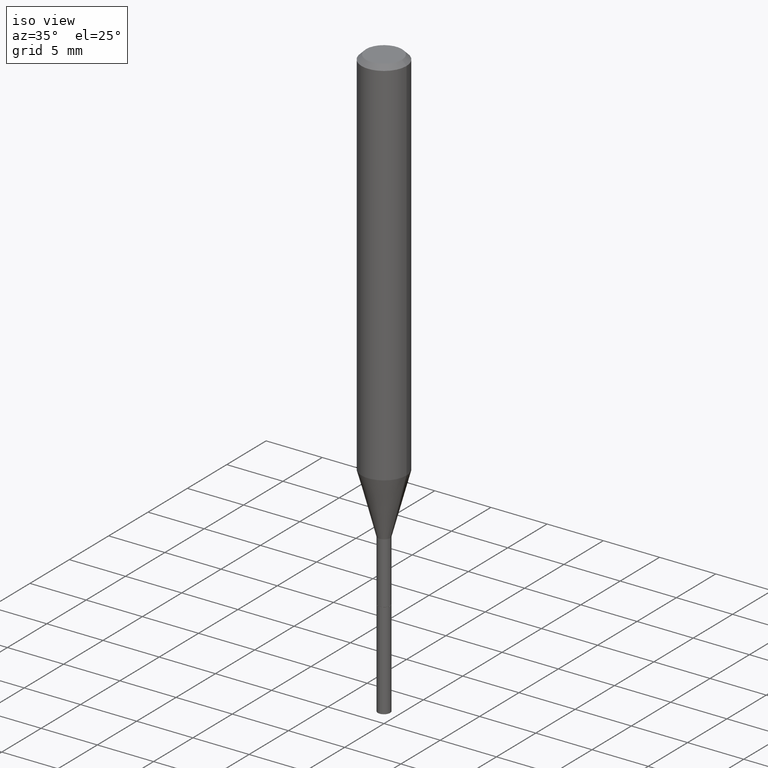
[diagram: clean part render]
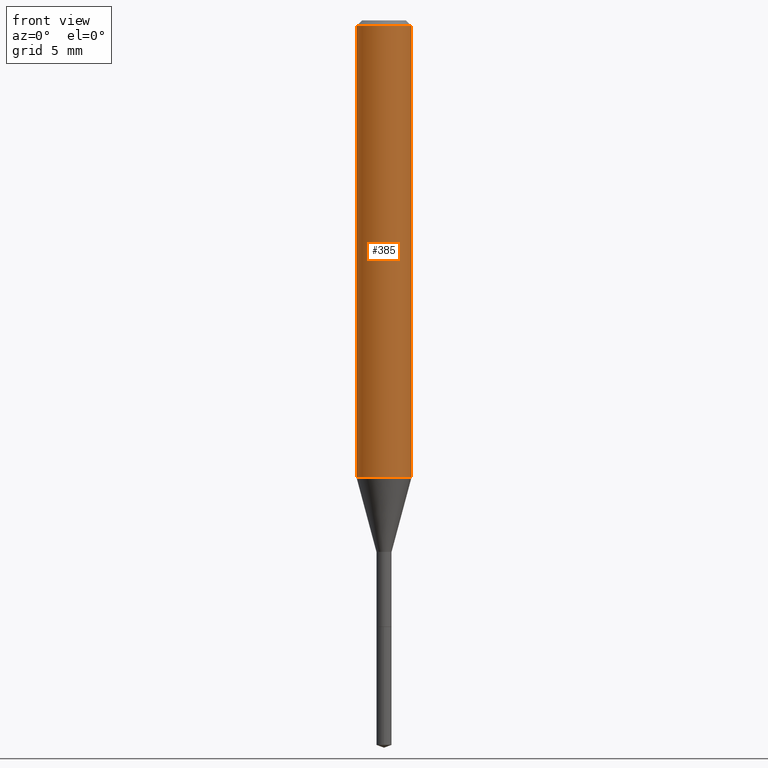
[diagram: tour spotlight — one face highlighted and labeled with its STEP entity id]
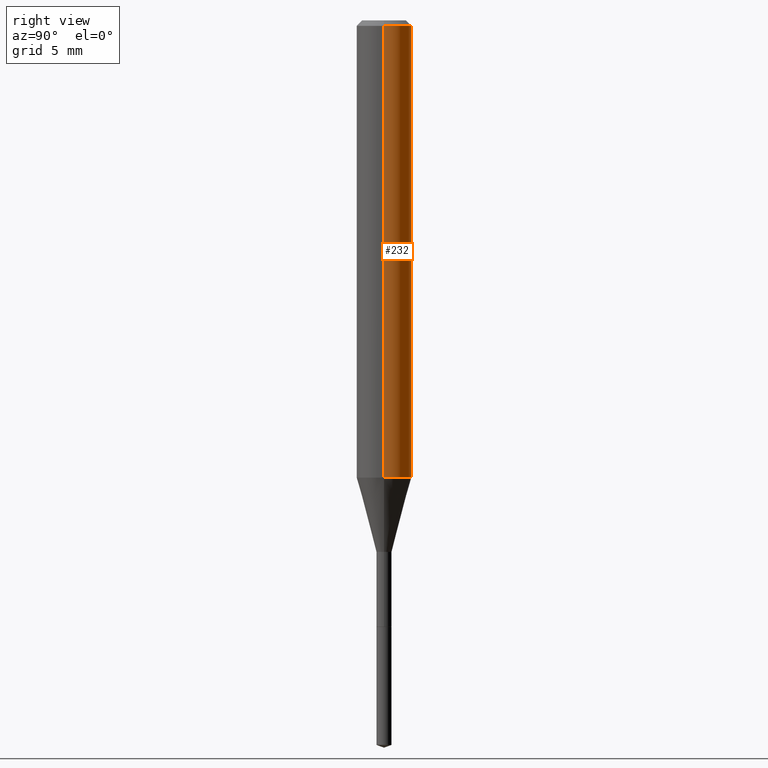
[diagram: tour spotlight — one face highlighted and labeled with its STEP entity id]
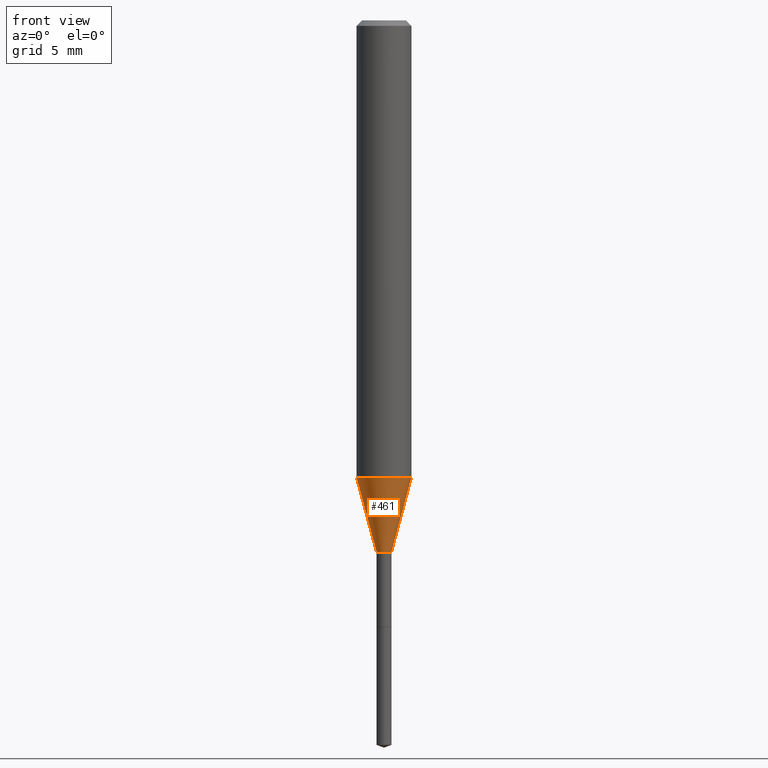
[diagram: tour spotlight — one face highlighted and labeled with its STEP entity id]
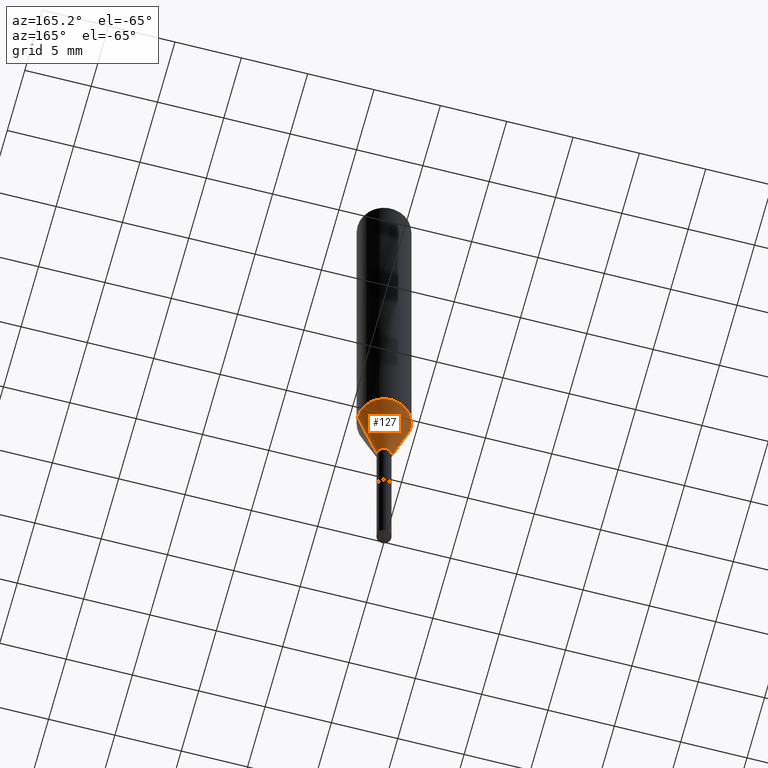
[diagram: tour spotlight — one face highlighted and labeled with its STEP entity id]
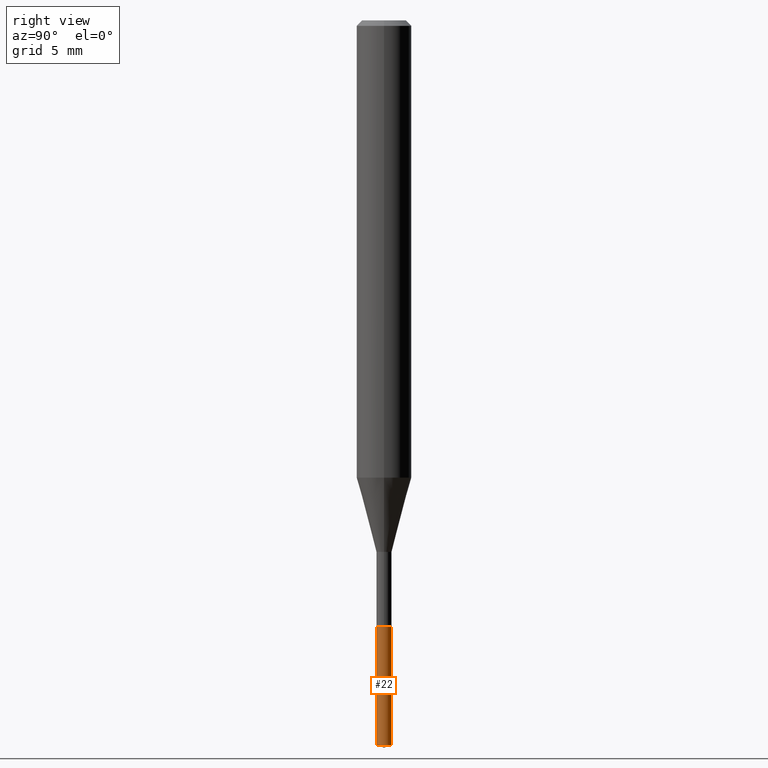
[diagram: tour spotlight — one face highlighted and labeled with its STEP entity id]
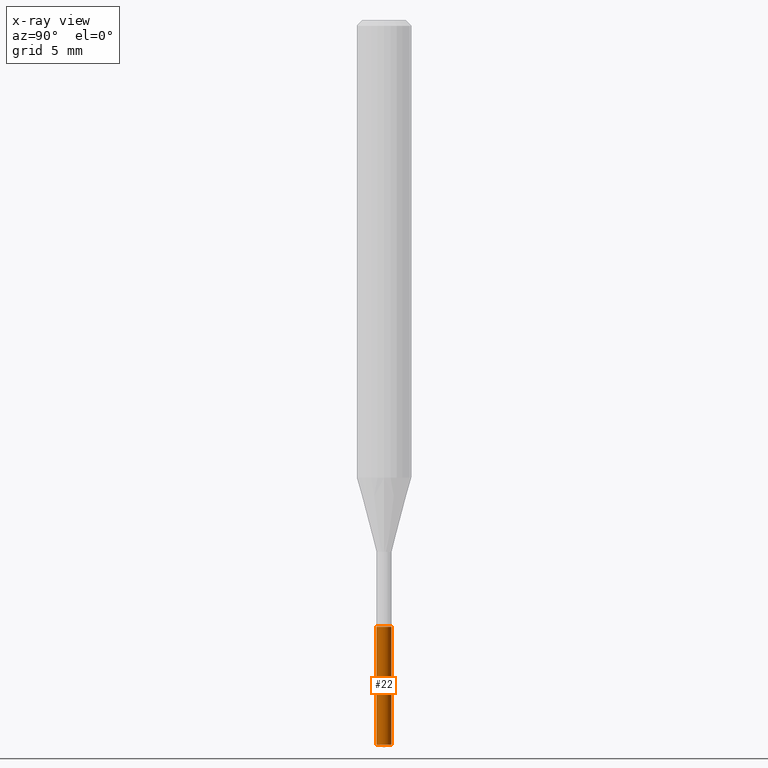
[diagram: x-ray of the same camera — body ghosted, this tour face saturated]
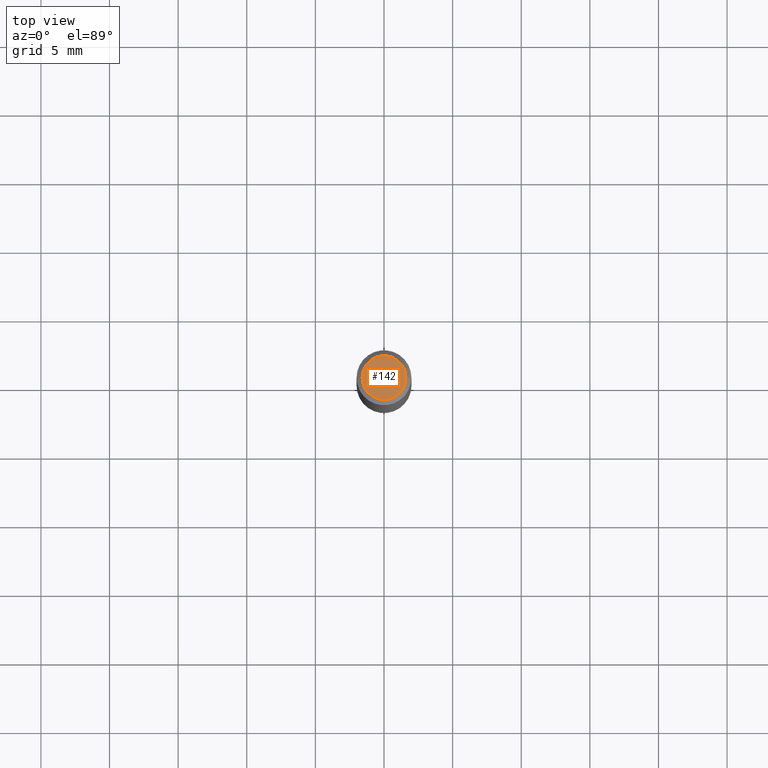
[diagram: tour spotlight — one face highlighted and labeled with its STEP entity id]
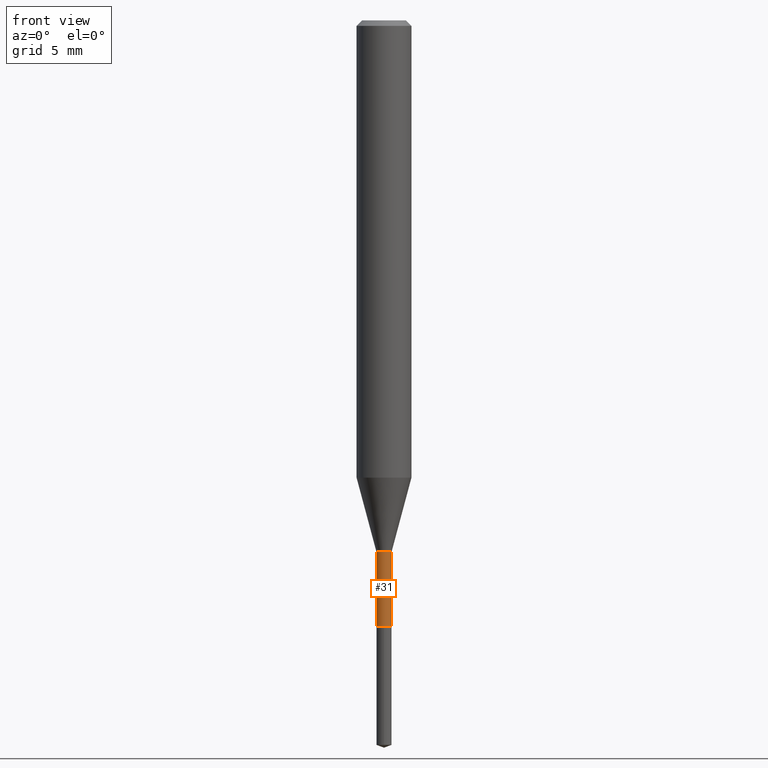
[diagram: tour spotlight — one face highlighted and labeled with its STEP entity id]
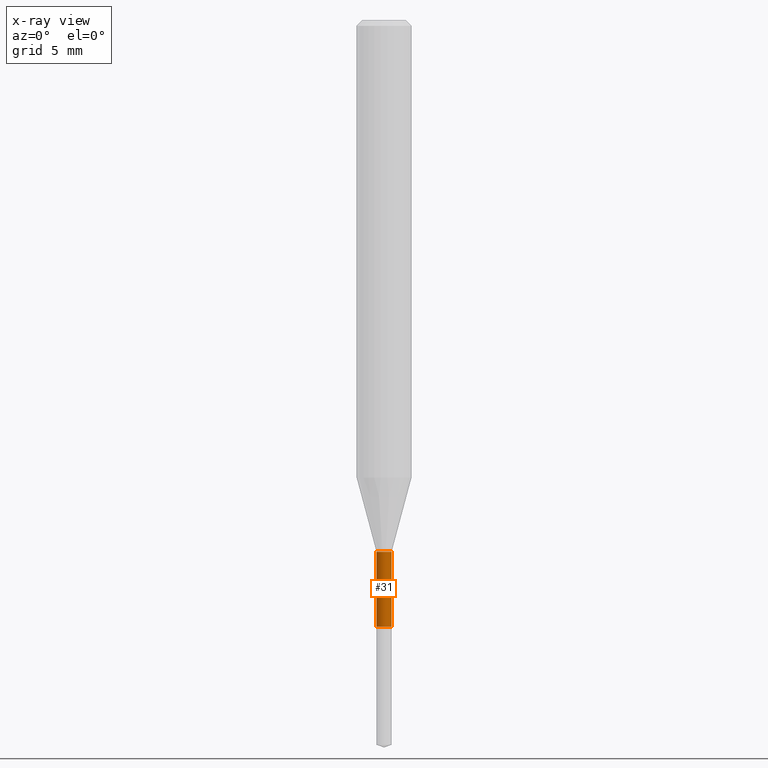
[diagram: x-ray of the same camera — body ghosted, this tour face saturated]
A machine part: a face-by-face anatomy tour. The part has 17 B-rep faces; the first image is the clean iso view, then the 7 largest visible faces are spotlighted one at a time (largest first), each with its STEP entity span.

Face 1 — front view, entity #385. In plain terms, the highlighted cylindrical surface (edge-blend (fillet) strip) has radius 2.0003 mm, axis along (-0, 0, 1).
Definition (entity closure, byte-faithful):
#4 = CARTESIAN_POINT ( 'NONE',  ( 0.000000000000000000, 0.000000000000000000, 0.000000000000000000 ) ) ;
#6 = CYLINDRICAL_SURFACE ( 'NONE', #384, 0.07875000000000008382 ) ;
#9 = ORIENTED_EDGE ( 'NONE', *, *, #152, .T. ) ;
#39 = CARTESIAN_POINT ( 'NONE',  ( -0.07875000000000016709, -4.020921610985940816E-15, -1.311899898887816551 ) ) ;
#47 = EDGE_CURVE ( 'NONE', #485, #254, #151, .T. ) ;
#51 = AXIS2_PLACEMENT_3D ( 'NONE', #303, #480, #144 ) ;
#54 = CARTESIAN_POINT ( 'NONE',  ( -0.07875000000000000056, -1.758180018830819886E-15, -0.01575000000000008338 ) ) ;
#78 = DIRECTION ( 'NONE',  ( -2.445468806185136597E-29, 3.491481338843145583E-15, 1.000000000000000000 ) ) ;
#93 = ORIENTED_EDGE ( 'NONE', *, *, #240, .F. ) ;
#98 = CIRCLE ( 'NONE', #203, 0.07875000000000000056 ) ;
#104 = ORIENTED_EDGE ( 'NONE', *, *, #47, .T. ) ;
#134 = CARTESIAN_POINT ( 'NONE',  ( 3.851613369741610420E-31, -5.499083108677983377E-17, -0.01575000000000008338 ) ) ;
#144 = DIRECTION ( 'NONE',  ( 1.000000000000000000, -6.982962677686271444E-15, 0.000000000000000000 ) ) ;
#151 = CIRCLE ( 'NONE', #51, 0.07875000000000016709 ) ;
#152 = EDGE_CURVE ( 'NONE', #254, #207, #317, .T. ) ;
#160 = CARTESIAN_POINT ( 'NONE',  ( 0.07875000000000008382, -5.499083108677941345E-16, 3.839989210939303220E-30 ) ) ;
#182 = EDGE_LOOP ( 'NONE', ( #93, #104, #9, #338 ) ) ;
#203 = AXIS2_PLACEMENT_3D ( 'NONE', #134, #293, #205 ) ;
#205 = DIRECTION ( 'NONE',  ( 1.000000000000000000, -6.982962677686265922E-15, 0.000000000000000000 ) ) ;
#207 = VERTEX_POINT ( 'NONE', #235 ) ;
#235 = CARTESIAN_POINT ( 'NONE',  ( 0.07875000000000000056, -6.048991419545733705E-16, -0.01575000000000008338 ) ) ;
#236 = EDGE_CURVE ( 'NONE', #290, #207, #98, .T. ) ;
#240 = EDGE_CURVE ( 'NONE', #485, #290, #433, .T. ) ;
#245 = VECTOR ( 'NONE', #355, 39.37007874015748143 ) ;
#254 = VERTEX_POINT ( 'NONE', #467 ) ;
#290 = VERTEX_POINT ( 'NONE', #54 ) ;
#293 = DIRECTION ( 'NONE',  ( -2.445468806185136597E-29, 3.491481338843145583E-15, 1.000000000000000000 ) ) ;
#303 = CARTESIAN_POINT ( 'NONE',  ( 3.208210279567590187E-29, -4.580474015397021196E-15, -1.311899898887816551 ) ) ;
#317 = LINE ( 'NONE', #160, #489 ) ;
#338 = ORIENTED_EDGE ( 'NONE', *, *, #236, .F. ) ;
#355 = DIRECTION ( 'NONE',  ( -2.445468806185136877E-29, 3.491481338843145188E-15, 1.000000000000000000 ) ) ;
#359 = CARTESIAN_POINT ( 'NONE',  ( -0.07875000000000008382, 5.595524044110794920E-16, -3.873661383575742696E-30 ) ) ;
#379 = FACE_OUTER_BOUND ( 'NONE', #182, .T. ) ;
#383 = DIRECTION ( 'NONE',  ( -2.445468806185136877E-29, 3.491481338843145188E-15, 1.000000000000000000 ) ) ;
#384 = AXIS2_PLACEMENT_3D ( 'NONE', #4, #78, #454 ) ;
#385 = ADVANCED_FACE ( 'NONE', ( #379 ), #6, .T. ) ;
#433 = LINE ( 'NONE', #359, #245 ) ;
#454 = DIRECTION ( 'NONE',  ( 1.000000000000000000, -6.982962677686267499E-15, 4.876176775795935232E-29 ) ) ;
#467 = CARTESIAN_POINT ( 'NONE',  ( 0.07875000000000016709, -5.130382326264816119E-15, -1.311899898887816551 ) ) ;
#480 = DIRECTION ( 'NONE',  ( -2.445468806185136597E-29, 3.491481338843145583E-15, 1.000000000000000000 ) ) ;
#485 = VERTEX_POINT ( 'NONE', #39 ) ;
#489 = VECTOR ( 'NONE', #383, 39.37007874015748143 ) ;

Face 2 — right view, entity #232. In plain terms, the highlighted cylindrical surface (edge-blend (fillet) strip) has radius 2.0003 mm, axis along (-0, 0, 1).
Definition (entity closure, byte-faithful):
#11 = CARTESIAN_POINT ( 'NONE',  ( 3.208210279567590187E-29, -4.580474015397021196E-15, -1.311899898887816551 ) ) ;
#39 = CARTESIAN_POINT ( 'NONE',  ( -0.07875000000000016709, -4.020921610985940816E-15, -1.311899898887816551 ) ) ;
#50 = DIRECTION ( 'NONE',  ( 1.000000000000000000, -6.982962677686267499E-15, 4.876176775795935232E-29 ) ) ;
#54 = CARTESIAN_POINT ( 'NONE',  ( -0.07875000000000000056, -1.758180018830819886E-15, -0.01575000000000008338 ) ) ;
#59 = CIRCLE ( 'NONE', #463, 0.07875000000000016709 ) ;
#64 = ORIENTED_EDGE ( 'NONE', *, *, #470, .F. ) ;
#70 = DIRECTION ( 'NONE',  ( 1.000000000000000000, -6.982962677686265922E-15, 0.000000000000000000 ) ) ;
#71 = DIRECTION ( 'NONE',  ( -2.445468806185136597E-29, 3.491481338843145583E-15, 1.000000000000000000 ) ) ;
#75 = DIRECTION ( 'NONE',  ( 1.000000000000000000, -6.982962677686271444E-15, 0.000000000000000000 ) ) ;
#128 = FACE_OUTER_BOUND ( 'NONE', #133, .T. ) ;
#133 = EDGE_LOOP ( 'NONE', ( #242, #177, #64, #291 ) ) ;
#152 = EDGE_CURVE ( 'NONE', #254, #207, #317, .T. ) ;
#160 = CARTESIAN_POINT ( 'NONE',  ( 0.07875000000000008382, -5.499083108677941345E-16, 3.839989210939303220E-30 ) ) ;
#164 = CYLINDRICAL_SURFACE ( 'NONE', #411, 0.07875000000000008382 ) ;
#171 = DIRECTION ( 'NONE',  ( -2.445468806185136597E-29, 3.491481338843145583E-15, 1.000000000000000000 ) ) ;
#177 = ORIENTED_EDGE ( 'NONE', *, *, #240, .T. ) ;
#200 = EDGE_CURVE ( 'NONE', #254, #485, #59, .T. ) ;
#207 = VERTEX_POINT ( 'NONE', #235 ) ;
#232 = ADVANCED_FACE ( 'NONE', ( #128 ), #164, .T. ) ;
#235 = CARTESIAN_POINT ( 'NONE',  ( 0.07875000000000000056, -6.048991419545733705E-16, -0.01575000000000008338 ) ) ;
#240 = EDGE_CURVE ( 'NONE', #485, #290, #433, .T. ) ;
#242 = ORIENTED_EDGE ( 'NONE', *, *, #200, .T. ) ;
#245 = VECTOR ( 'NONE', #355, 39.37007874015748143 ) ;
#254 = VERTEX_POINT ( 'NONE', #467 ) ;
#263 = CARTESIAN_POINT ( 'NONE',  ( 3.851613369741610420E-31, -5.499083108677983377E-17, -0.01575000000000008338 ) ) ;
#290 = VERTEX_POINT ( 'NONE', #54 ) ;
#291 = ORIENTED_EDGE ( 'NONE', *, *, #152, .F. ) ;
#317 = LINE ( 'NONE', #160, #489 ) ;
#326 = CARTESIAN_POINT ( 'NONE',  ( 0.000000000000000000, 0.000000000000000000, 0.000000000000000000 ) ) ;
#355 = DIRECTION ( 'NONE',  ( -2.445468806185136877E-29, 3.491481338843145188E-15, 1.000000000000000000 ) ) ;
#359 = CARTESIAN_POINT ( 'NONE',  ( -0.07875000000000008382, 5.595524044110794920E-16, -3.873661383575742696E-30 ) ) ;
#372 = AXIS2_PLACEMENT_3D ( 'NONE', #263, #71, #70 ) ;
#383 = DIRECTION ( 'NONE',  ( -2.445468806185136877E-29, 3.491481338843145188E-15, 1.000000000000000000 ) ) ;
#411 = AXIS2_PLACEMENT_3D ( 'NONE', #326, #171, #50 ) ;
#412 = DIRECTION ( 'NONE',  ( -2.445468806185136597E-29, 3.491481338843145583E-15, 1.000000000000000000 ) ) ;
#422 = CIRCLE ( 'NONE', #372, 0.07875000000000000056 ) ;
#433 = LINE ( 'NONE', #359, #245 ) ;
#463 = AXIS2_PLACEMENT_3D ( 'NONE', #11, #412, #75 ) ;
#467 = CARTESIAN_POINT ( 'NONE',  ( 0.07875000000000016709, -5.130382326264816119E-15, -1.311899898887816551 ) ) ;
#470 = EDGE_CURVE ( 'NONE', #207, #290, #422, .T. ) ;
#485 = VERTEX_POINT ( 'NONE', #39 ) ;
#489 = VECTOR ( 'NONE', #383, 39.37007874015748143 ) ;

Face 3 — front view, entity #461. In plain terms, the highlighted conical surface has half-angle 15 deg.
Definition (entity closure, byte-faithful):
#1 = EDGE_CURVE ( 'NONE', #478, #485, #477, .T. ) ;
#5 = VECTOR ( 'NONE', #398, 39.37007874015748854 ) ;
#39 = CARTESIAN_POINT ( 'NONE',  ( -0.07875000000000016709, -4.020921610985940816E-15, -1.311899898887816551 ) ) ;
#47 = EDGE_CURVE ( 'NONE', #485, #254, #151, .T. ) ;
#51 = AXIS2_PLACEMENT_3D ( 'NONE', #303, #480, #144 ) ;
#92 = CARTESIAN_POINT ( 'NONE',  ( -0.02164999999999996788, -5.170676539443734408E-15, -1.524999999999999689 ) ) ;
#118 = DIRECTION ( 'NONE',  ( 0.2588190451025212391, 1.565188264969622362E-15, 0.9659258262890679791 ) ) ;
#122 = ORIENTED_EDGE ( 'NONE', *, *, #192, .T. ) ;
#132 = DIRECTION ( 'NONE',  ( -2.445468806185136597E-29, 3.491481338843145583E-15, 1.000000000000000000 ) ) ;
#135 = AXIS2_PLACEMENT_3D ( 'NONE', #343, #299, #409 ) ;
#144 = DIRECTION ( 'NONE',  ( 1.000000000000000000, -6.982962677686271444E-15, 0.000000000000000000 ) ) ;
#151 = CIRCLE ( 'NONE', #51, 0.07875000000000016709 ) ;
#192 = EDGE_CURVE ( 'NONE', #213, #254, #420, .T. ) ;
#213 = VERTEX_POINT ( 'NONE', #378 ) ;
#223 = VECTOR ( 'NONE', #118, 39.37007874015748854 ) ;
#230 = CARTESIAN_POINT ( 'NONE',  ( -0.02164999999999996788, -5.545312487101604062E-15, -1.524999999999999689 ) ) ;
#254 = VERTEX_POINT ( 'NONE', #467 ) ;
#278 = CARTESIAN_POINT ( 'NONE',  ( 0.02164999999999996788, -5.475690183707704242E-15, -1.524999999999999689 ) ) ;
#279 = EDGE_CURVE ( 'NONE', #478, #213, #323, .T. ) ;
#283 = CONICAL_SURFACE ( 'NONE', #135, 0.02164999999999996788, 0.2617993877991499629 ) ;
#292 = DIRECTION ( 'NONE',  ( 1.000000000000000000, -6.982962677686278543E-15, 0.000000000000000000 ) ) ;
#299 = DIRECTION ( 'NONE',  ( -2.445468806185136597E-29, 3.491481338843145583E-15, 1.000000000000000000 ) ) ;
#303 = CARTESIAN_POINT ( 'NONE',  ( 3.208210279567590187E-29, -4.580474015397021196E-15, -1.311899898887816551 ) ) ;
#323 = CIRCLE ( 'NONE', #438, 0.02164999999999996788 ) ;
#343 = CARTESIAN_POINT ( 'NONE',  ( 3.729339929432332637E-29, -5.324509041735796511E-15, -1.524999999999999689 ) ) ;
#365 = ORIENTED_EDGE ( 'NONE', *, *, #279, .T. ) ;
#373 = FACE_OUTER_BOUND ( 'NONE', #466, .T. ) ;
#378 = CARTESIAN_POINT ( 'NONE',  ( 0.02164999999999996788, -5.475690183707704242E-15, -1.524999999999999689 ) ) ;
#398 = DIRECTION ( 'NONE',  ( -0.2588190451025212391, 5.211531920934549464E-15, 0.9659258262890679791 ) ) ;
#409 = DIRECTION ( 'NONE',  ( 1.000000000000000000, -6.982962677686278543E-15, 0.000000000000000000 ) ) ;
#420 = LINE ( 'NONE', #278, #223 ) ;
#426 = CARTESIAN_POINT ( 'NONE',  ( 3.729339929432332637E-29, -5.324509041735796511E-15, -1.524999999999999689 ) ) ;
#432 = ORIENTED_EDGE ( 'NONE', *, *, #1, .F. ) ;
#435 = ORIENTED_EDGE ( 'NONE', *, *, #47, .F. ) ;
#438 = AXIS2_PLACEMENT_3D ( 'NONE', #426, #132, #292 ) ;
#461 = ADVANCED_FACE ( 'NONE', ( #373 ), #283, .T. ) ;
#466 = EDGE_LOOP ( 'NONE', ( #432, #365, #122, #435 ) ) ;
#467 = CARTESIAN_POINT ( 'NONE',  ( 0.07875000000000016709, -5.130382326264816119E-15, -1.311899898887816551 ) ) ;
#477 = LINE ( 'NONE', #92, #5 ) ;
#478 = VERTEX_POINT ( 'NONE', #230 ) ;
#480 = DIRECTION ( 'NONE',  ( -2.445468806185136597E-29, 3.491481338843145583E-15, 1.000000000000000000 ) ) ;
#485 = VERTEX_POINT ( 'NONE', #39 ) ;

Face 4 — auxiliary view, entity #127. In plain terms, the highlighted conical surface has half-angle 15 deg.
Definition (entity closure, byte-faithful):
#1 = EDGE_CURVE ( 'NONE', #478, #485, #477, .T. ) ;
#5 = VECTOR ( 'NONE', #398, 39.37007874015748854 ) ;
#11 = CARTESIAN_POINT ( 'NONE',  ( 3.208210279567590187E-29, -4.580474015397021196E-15, -1.311899898887816551 ) ) ;
#14 = AXIS2_PLACEMENT_3D ( 'NONE', #298, #436, #340 ) ;
#39 = CARTESIAN_POINT ( 'NONE',  ( -0.07875000000000016709, -4.020921610985940816E-15, -1.311899898887816551 ) ) ;
#59 = CIRCLE ( 'NONE', #463, 0.07875000000000016709 ) ;
#66 = DIRECTION ( 'NONE',  ( -2.445468806185136597E-29, 3.491481338843145583E-15, 1.000000000000000000 ) ) ;
#75 = DIRECTION ( 'NONE',  ( 1.000000000000000000, -6.982962677686271444E-15, 0.000000000000000000 ) ) ;
#90 = CIRCLE ( 'NONE', #405, 0.02164999999999996788 ) ;
#92 = CARTESIAN_POINT ( 'NONE',  ( -0.02164999999999996788, -5.170676539443734408E-15, -1.524999999999999689 ) ) ;
#94 = ORIENTED_EDGE ( 'NONE', *, *, #1, .T. ) ;
#102 = EDGE_CURVE ( 'NONE', #213, #478, #90, .T. ) ;
#106 = DIRECTION ( 'NONE',  ( 1.000000000000000000, -6.982962677686278543E-15, 0.000000000000000000 ) ) ;
#107 = ORIENTED_EDGE ( 'NONE', *, *, #102, .T. ) ;
#118 = DIRECTION ( 'NONE',  ( 0.2588190451025212391, 1.565188264969622362E-15, 0.9659258262890679791 ) ) ;
#127 = ADVANCED_FACE ( 'NONE', ( #442 ), #437, .T. ) ;
#131 = EDGE_LOOP ( 'NONE', ( #107, #94, #201, #141 ) ) ;
#141 = ORIENTED_EDGE ( 'NONE', *, *, #192, .F. ) ;
#192 = EDGE_CURVE ( 'NONE', #213, #254, #420, .T. ) ;
#200 = EDGE_CURVE ( 'NONE', #254, #485, #59, .T. ) ;
#201 = ORIENTED_EDGE ( 'NONE', *, *, #200, .F. ) ;
#213 = VERTEX_POINT ( 'NONE', #378 ) ;
#223 = VECTOR ( 'NONE', #118, 39.37007874015748854 ) ;
#230 = CARTESIAN_POINT ( 'NONE',  ( -0.02164999999999996788, -5.545312487101604062E-15, -1.524999999999999689 ) ) ;
#254 = VERTEX_POINT ( 'NONE', #467 ) ;
#260 = CARTESIAN_POINT ( 'NONE',  ( 3.729339929432332637E-29, -5.324509041735796511E-15, -1.524999999999999689 ) ) ;
#278 = CARTESIAN_POINT ( 'NONE',  ( 0.02164999999999996788, -5.475690183707704242E-15, -1.524999999999999689 ) ) ;
#298 = CARTESIAN_POINT ( 'NONE',  ( 3.729339929432332637E-29, -5.324509041735796511E-15, -1.524999999999999689 ) ) ;
#340 = DIRECTION ( 'NONE',  ( 1.000000000000000000, -6.982962677686278543E-15, 0.000000000000000000 ) ) ;
#378 = CARTESIAN_POINT ( 'NONE',  ( 0.02164999999999996788, -5.475690183707704242E-15, -1.524999999999999689 ) ) ;
#398 = DIRECTION ( 'NONE',  ( -0.2588190451025212391, 5.211531920934549464E-15, 0.9659258262890679791 ) ) ;
#405 = AXIS2_PLACEMENT_3D ( 'NONE', #260, #66, #106 ) ;
#412 = DIRECTION ( 'NONE',  ( -2.445468806185136597E-29, 3.491481338843145583E-15, 1.000000000000000000 ) ) ;
#420 = LINE ( 'NONE', #278, #223 ) ;
#436 = DIRECTION ( 'NONE',  ( -2.445468806185136597E-29, 3.491481338843145583E-15, 1.000000000000000000 ) ) ;
#437 = CONICAL_SURFACE ( 'NONE', #14, 0.02164999999999996788, 0.2617993877991499629 ) ;
#442 = FACE_OUTER_BOUND ( 'NONE', #131, .T. ) ;
#463 = AXIS2_PLACEMENT_3D ( 'NONE', #11, #412, #75 ) ;
#467 = CARTESIAN_POINT ( 'NONE',  ( 0.07875000000000016709, -5.130382326264816119E-15, -1.311899898887816551 ) ) ;
#477 = LINE ( 'NONE', #92, #5 ) ;
#478 = VERTEX_POINT ( 'NONE', #230 ) ;
#485 = VERTEX_POINT ( 'NONE', #39 ) ;

Face 5 — right view, entity #22. An x-ray twin of the same camera follows (body ghosted, this face saturated) — the face is partly hidden behind the body. In plain terms, the highlighted cylindrical surface (edge-blend (fillet) strip) has radius 0.5499 mm, axis along (-0, 0, 1).
Definition (entity closure, byte-faithful):
#13 = DIRECTION ( 'NONE',  ( -2.447356181601937333E-29, 3.488778509823549304E-15, 1.000000000000000000 ) ) ;
#15 = CYLINDRICAL_SURFACE ( 'NONE', #421, 0.02164999999999999564 ) ;
#20 = VERTEX_POINT ( 'NONE', #212 ) ;
#21 = CARTESIAN_POINT ( 'NONE',  ( 4.255360269642755723E-29, -6.075526677720957323E-15, -1.740099999999999758 ) ) ;
#22 = ADVANCED_FACE ( 'NONE', ( #139 ), #15, .T. ) ;
#27 = VERTEX_POINT ( 'NONE', #253 ) ;
#30 = CIRCLE ( 'NONE', #189, 0.02164999999999999564 ) ;
#32 = VECTOR ( 'NONE', #281, 39.37007874015748143 ) ;
#45 = CARTESIAN_POINT ( 'NONE',  ( 1.538325022921125161E-16, 0.02164999999999274449, -2.078720044428136848 ) ) ;
#62 = DIRECTION ( 'NONE',  ( -2.447356181601937333E-29, 3.488778509823549304E-15, 1.000000000000000000 ) ) ;
#68 = CARTESIAN_POINT ( 'NONE',  ( -1.511811419718650833E-16, -0.02165000000000607064, -1.740099999999999758 ) ) ;
#80 = ORIENTED_EDGE ( 'NONE', *, *, #322, .T. ) ;
#96 = CARTESIAN_POINT ( 'NONE',  ( 4.255360269642755723E-29, -6.075526677720957323E-15, -1.740099999999999758 ) ) ;
#110 = EDGE_CURVE ( 'NONE', #27, #20, #266, .T. ) ;
#136 = CIRCLE ( 'NONE', #239, 0.02164999999999999564 ) ;
#139 = FACE_OUTER_BOUND ( 'NONE', #209, .T. ) ;
#189 = AXIS2_PLACEMENT_3D ( 'NONE', #21, #13, #287 ) ;
#209 = EDGE_LOOP ( 'NONE', ( #221, #80, #336, #284 ) ) ;
#212 = CARTESIAN_POINT ( 'NONE',  ( -1.511811419718650833E-16, -0.02165000000000607064, -1.740099999999999758 ) ) ;
#215 = DIRECTION ( 'NONE',  ( -2.447356181601937333E-29, 3.488778509823549304E-15, 1.000000000000000000 ) ) ;
#221 = ORIENTED_EDGE ( 'NONE', *, *, #472, .T. ) ;
#234 = LINE ( 'NONE', #348, #32 ) ;
#239 = AXIS2_PLACEMENT_3D ( 'NONE', #302, #408, #368 ) ;
#249 = DIRECTION ( 'NONE',  ( -6.982962677686265922E-15, -1.000000000000000000, 0.000000000000000000 ) ) ;
#253 = CARTESIAN_POINT ( 'NONE',  ( -1.511811419718568249E-16, -0.02165000000000725719, -2.078720044428136848 ) ) ;
#264 = EDGE_CURVE ( 'NONE', #20, #387, #30, .T. ) ;
#266 = LINE ( 'NONE', #68, #371 ) ;
#281 = DIRECTION ( 'NONE',  ( -2.447356181601937333E-29, 3.488778509823549304E-15, 1.000000000000000000 ) ) ;
#284 = ORIENTED_EDGE ( 'NONE', *, *, #110, .F. ) ;
#287 = DIRECTION ( 'NONE',  ( -6.982962677686265922E-15, -1.000000000000000000, 0.000000000000000000 ) ) ;
#302 = CARTESIAN_POINT ( 'NONE',  ( 5.084084128588279667E-29, -7.256897011717338152E-15, -2.078720044428136848 ) ) ;
#322 = EDGE_CURVE ( 'NONE', #406, #387, #234, .T. ) ;
#336 = ORIENTED_EDGE ( 'NONE', *, *, #264, .F. ) ;
#348 = CARTESIAN_POINT ( 'NONE',  ( 1.538325022921041838E-16, 0.02164999999999392410, -1.740099999999999758 ) ) ;
#368 = DIRECTION ( 'NONE',  ( -6.982962677686265922E-15, -1.000000000000000000, 0.000000000000000000 ) ) ;
#371 = VECTOR ( 'NONE', #62, 39.37007874015748143 ) ;
#387 = VERTEX_POINT ( 'NONE', #415 ) ;
#406 = VERTEX_POINT ( 'NONE', #45 ) ;
#408 = DIRECTION ( 'NONE',  ( -2.447356181601937333E-29, 3.488778509823549304E-15, 1.000000000000000000 ) ) ;
#415 = CARTESIAN_POINT ( 'NONE',  ( 1.538325022921125654E-16, 0.02164999999999392757, -1.740099999999999758 ) ) ;
#421 = AXIS2_PLACEMENT_3D ( 'NONE', #96, #215, #249 ) ;
#472 = EDGE_CURVE ( 'NONE', #27, #406, #136, .T. ) ;

Face 6 — top view, entity #142. In plain terms, the highlighted planar face has unit normal (0, -0, -1).
Definition (entity closure, byte-faithful):
#29 = PLANE ( 'NONE',  #224 ) ;
#33 = ORIENTED_EDGE ( 'NONE', *, *, #197, .T. ) ;
#67 = CIRCLE ( 'NONE', #282, 0.06300000000000000044 ) ;
#81 = AXIS2_PLACEMENT_3D ( 'NONE', #346, #460, #419 ) ;
#103 = CARTESIAN_POINT ( 'NONE',  ( 4.713871149261278955E-47, -6.730158695841834933E-33, -1.927594061857933439E-18 ) ) ;
#138 = VERTEX_POINT ( 'NONE', #300 ) ;
#142 = ADVANCED_FACE ( 'NONE', ( #257 ), #29, .F. ) ;
#197 = EDGE_CURVE ( 'NONE', #319, #138, #67, .T. ) ;
#199 = CARTESIAN_POINT ( 'NONE',  ( 9.427742298522557911E-47, -1.346031739168366987E-32, -3.855188123715866879E-18 ) ) ;
#206 = CIRCLE ( 'NONE', #81, 0.06300000000000000044 ) ;
#224 = AXIS2_PLACEMENT_3D ( 'NONE', #103, #401, #367 ) ;
#238 = CARTESIAN_POINT ( 'NONE',  ( -0.06300000000000000044, 4.674220642376242452E-16, -3.855188123719040041E-18 ) ) ;
#252 = ORIENTED_EDGE ( 'NONE', *, *, #407, .T. ) ;
#257 = FACE_OUTER_BOUND ( 'NONE', #311, .T. ) ;
#271 = DIRECTION ( 'NONE',  ( -2.445468806185136597E-29, 3.491481338843145583E-15, 1.000000000000000000 ) ) ;
#282 = AXIS2_PLACEMENT_3D ( 'NONE', #199, #271, #417 ) ;
#300 = CARTESIAN_POINT ( 'NONE',  ( 0.06300000000000000044, -5.137332111354472216E-16, -3.855188123712532709E-18 ) ) ;
#311 = EDGE_LOOP ( 'NONE', ( #33, #252 ) ) ;
#319 = VERTEX_POINT ( 'NONE', #238 ) ;
#346 = CARTESIAN_POINT ( 'NONE',  ( 9.427742298522557911E-47, -1.346031739168366987E-32, -3.855188123715866879E-18 ) ) ;
#367 = DIRECTION ( 'NONE',  ( -1.000000000000000000, 6.982962677686265922E-15, -4.876176775795935793E-29 ) ) ;
#401 = DIRECTION ( 'NONE',  ( 2.438088387897960049E-29, -3.491481338843145188E-15, -1.000000000000000000 ) ) ;
#407 = EDGE_CURVE ( 'NONE', #138, #319, #206, .T. ) ;
#417 = DIRECTION ( 'NONE',  ( 1.000000000000000000, -6.982962677686265922E-15, 4.875905316334701673E-29 ) ) ;
#419 = DIRECTION ( 'NONE',  ( 1.000000000000000000, -6.982962677686265922E-15, 4.875905316334701673E-29 ) ) ;
#460 = DIRECTION ( 'NONE',  ( -2.445468806185136597E-29, 3.491481338843145583E-15, 1.000000000000000000 ) ) ;

Face 7 — front view, entity #31. An x-ray twin of the same camera follows (body ghosted, this face saturated) — the face is partly hidden behind the body. In plain terms, the highlighted cylindrical surface (edge-blend (fillet) strip) has radius 0.5499 mm, axis along (-0, 0, 1).
Definition (entity closure, byte-faithful):
#25 = CARTESIAN_POINT ( 'NONE',  ( 0.000000000000000000, 0.000000000000000000, 0.000000000000000000 ) ) ;
#31 = ADVANCED_FACE ( 'NONE', ( #474 ), #400, .T. ) ;
#53 = ORIENTED_EDGE ( 'NONE', *, *, #325, .T. ) ;
#60 = DIRECTION ( 'NONE',  ( -2.445468806185136597E-29, 3.491481338843145583E-15, 1.000000000000000000 ) ) ;
#108 = DIRECTION ( 'NONE',  ( -2.445468806185136877E-29, 3.491481338843145188E-15, 1.000000000000000000 ) ) ;
#120 = CARTESIAN_POINT ( 'NONE',  ( 0.02164999999999999217, -6.224962079023443550E-15, -1.739600000000000035 ) ) ;
#123 = DIRECTION ( 'NONE',  ( -2.445468806185136877E-29, 3.491481338843145188E-15, 1.000000000000000000 ) ) ;
#132 = DIRECTION ( 'NONE',  ( -2.445468806185136597E-29, 3.491481338843145583E-15, 1.000000000000000000 ) ) ;
#156 = DIRECTION ( 'NONE',  ( -2.445468806185136597E-29, 3.491481338843145583E-15, 1.000000000000000000 ) ) ;
#159 = CARTESIAN_POINT ( 'NONE',  ( 0.02164999999999998176, -1.511811419719075585E-16, 1.055692271959819087E-30 ) ) ;
#175 = AXIS2_PLACEMENT_3D ( 'NONE', #198, #156, #354 ) ;
#193 = LINE ( 'NONE', #159, #376 ) ;
#198 = CARTESIAN_POINT ( 'NONE',  ( 4.254137535239663482E-29, -6.073780937051535819E-15, -1.739600000000000035 ) ) ;
#213 = VERTEX_POINT ( 'NONE', #378 ) ;
#230 = CARTESIAN_POINT ( 'NONE',  ( -0.02164999999999996788, -5.545312487101604062E-15, -1.524999999999999689 ) ) ;
#279 = EDGE_CURVE ( 'NONE', #478, #213, #323, .T. ) ;
#292 = DIRECTION ( 'NONE',  ( 1.000000000000000000, -6.982962677686278543E-15, 0.000000000000000000 ) ) ;
#297 = VERTEX_POINT ( 'NONE', #450 ) ;
#301 = ORIENTED_EDGE ( 'NONE', *, *, #487, .F. ) ;
#307 = AXIS2_PLACEMENT_3D ( 'NONE', #25, #60, #431 ) ;
#323 = CIRCLE ( 'NONE', #438, 0.02164999999999996788 ) ;
#325 = EDGE_CURVE ( 'NONE', #363, #213, #193, .T. ) ;
#351 = VECTOR ( 'NONE', #108, 39.37007874015748143 ) ;
#354 = DIRECTION ( 'NONE',  ( 1.000000000000000000, -6.982962677686270655E-15, 0.000000000000000000 ) ) ;
#363 = VERTEX_POINT ( 'NONE', #120 ) ;
#370 = ORIENTED_EDGE ( 'NONE', *, *, #429, .T. ) ;
#374 = EDGE_LOOP ( 'NONE', ( #301, #370, #53, #425 ) ) ;
#376 = VECTOR ( 'NONE', #123, 39.37007874015748143 ) ;
#378 = CARTESIAN_POINT ( 'NONE',  ( 0.02164999999999996788, -5.475690183707704242E-15, -1.524999999999999689 ) ) ;
#400 = CYLINDRICAL_SURFACE ( 'NONE', #307, 0.02164999999999998176 ) ;
#413 = CIRCLE ( 'NONE', #175, 0.02164999999999999217 ) ;
#425 = ORIENTED_EDGE ( 'NONE', *, *, #279, .F. ) ;
#426 = CARTESIAN_POINT ( 'NONE',  ( 3.729339929432332637E-29, -5.324509041735796511E-15, -1.524999999999999689 ) ) ;
#429 = EDGE_CURVE ( 'NONE', #297, #363, #413, .T. ) ;
#431 = DIRECTION ( 'NONE',  ( 1.000000000000000000, -6.982962677686267499E-15, 4.876176775795935232E-29 ) ) ;
#438 = AXIS2_PLACEMENT_3D ( 'NONE', #426, #132, #292 ) ;
#450 = CARTESIAN_POINT ( 'NONE',  ( -0.02164999999999999217, -5.545312487101604062E-15, -1.739600000000000035 ) ) ;
#451 = CARTESIAN_POINT ( 'NONE',  ( -0.02164999999999998176, 1.538325022920615606E-16, -1.064949447040186151E-30 ) ) ;
#474 = FACE_OUTER_BOUND ( 'NONE', #374, .T. ) ;
#478 = VERTEX_POINT ( 'NONE', #230 ) ;
#486 = LINE ( 'NONE', #451, #351 ) ;
#487 = EDGE_CURVE ( 'NONE', #297, #478, #486, .T. ) ;